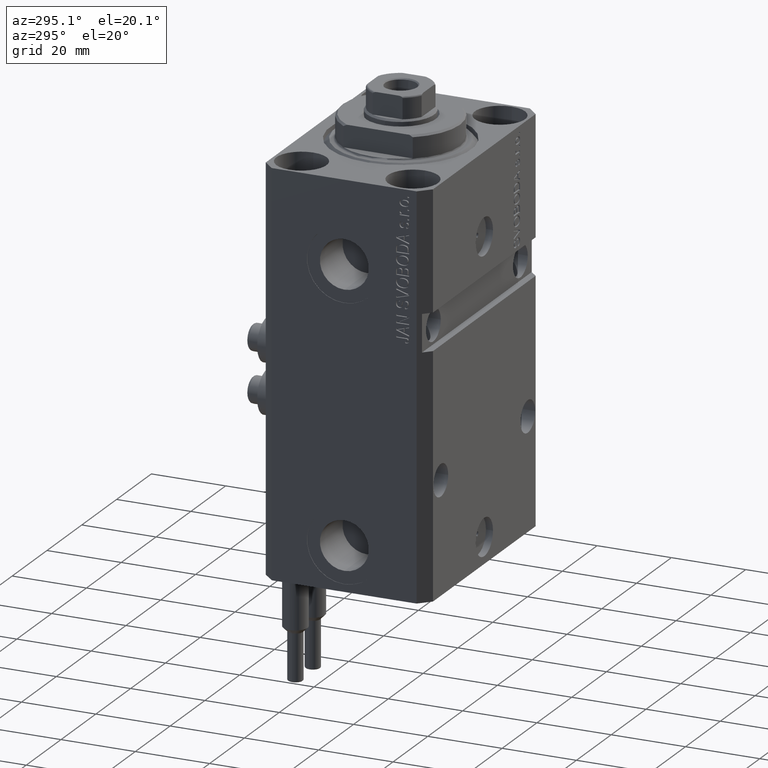
[diagram: clean part render]
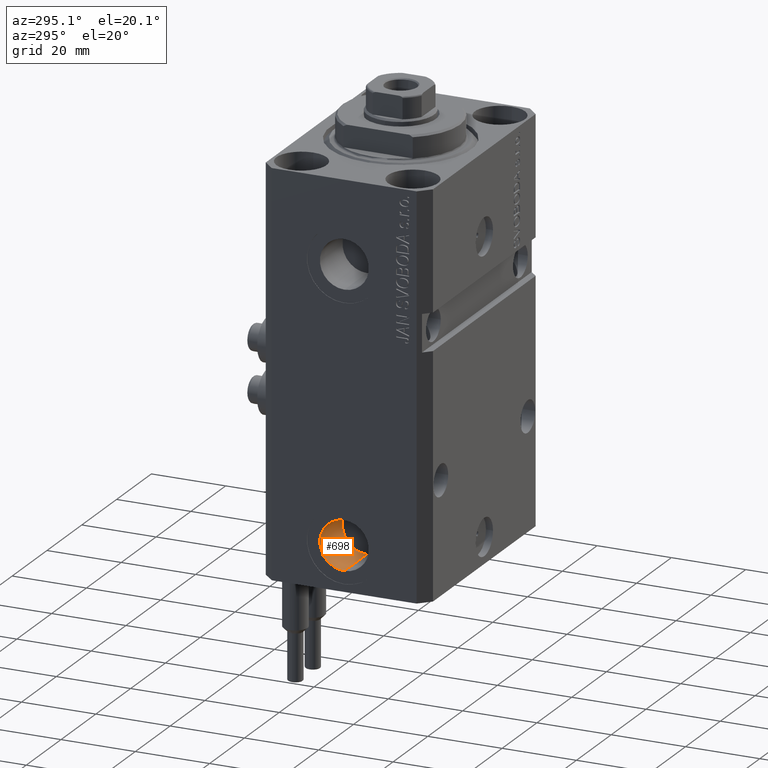
[diagram: same view with one face highlighted and labeled with its STEP entity id]
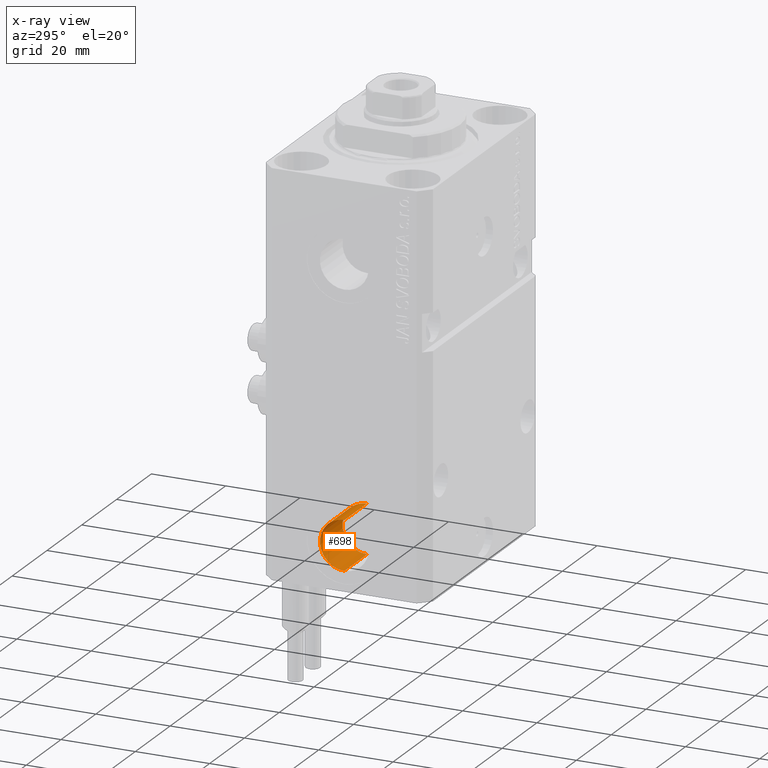
[diagram: x-ray of the same camera — body ghosted, the highlighted face saturated]
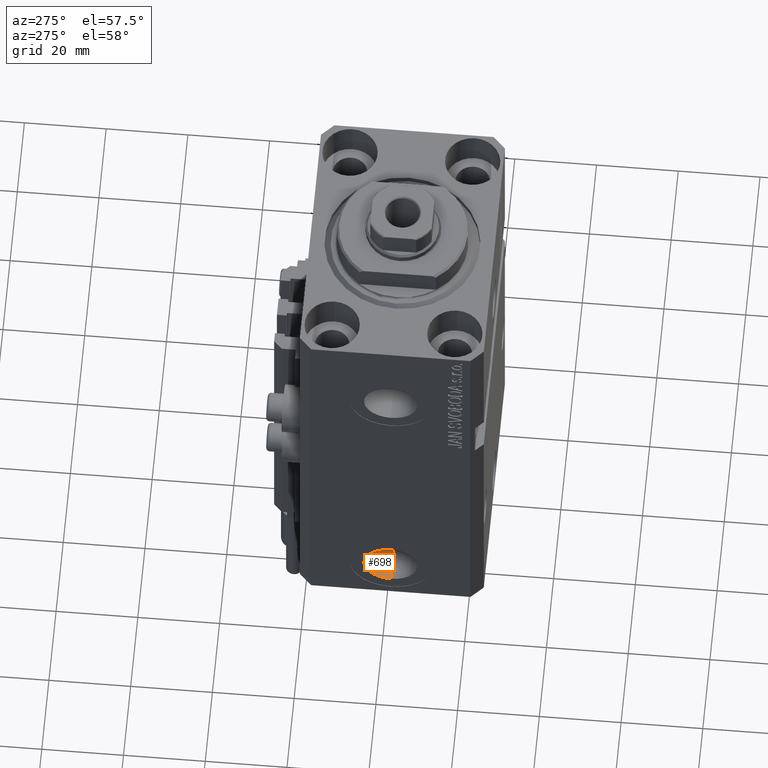
[diagram: same view with one face highlighted and labeled with its STEP entity id]
A machine part, auxiliary view. The second image highlights one B-rep face of the part: STEP entity #698.
The next image is the same camera in x-ray: the body ghosted, the highlighted face saturated — about 0% of this face is hidden behind the body in this view.
A second angle (auxiliary view) of the same face is appended — the face is thin or edge-on in the first view.
In plain terms, the highlighted cylindrical surface (edge-blend (fillet) strip) has radius 6.58 mm, axis along (-1, -0, -0).
Its self-contained STEP definition (entity closure, byte-faithful):
#643 = DIRECTION ( 'NONE',  ( 0.000000000000000000, 0.000000000000000000, 1.000000000000000000 ) ) ;
#698 = ADVANCED_FACE ( 'NONE', ( #12539 ), #16274, .F. ) ;
#1612 = DIRECTION ( 'NONE',  ( -1.000000000000000000, -0.000000000000000000, -0.000000000000000000 ) ) ;
#2351 = DIRECTION ( 'NONE',  ( -1.000000000000000000, -0.000000000000000000, -0.000000000000000000 ) ) ;
#4406 = VERTEX_POINT ( 'NONE', #9018 ) ;
#5579 = AXIS2_PLACEMENT_3D ( 'NONE', #21776, #44334, #6136 ) ;
#5591 = CARTESIAN_POINT ( 'NONE',  ( -32.39999999999650271, -1.082832699806089739E-14, -101.5799999999999983 ) ) ;
#6136 = DIRECTION ( 'NONE',  ( 0.000000000000000000, 0.000000000000000000, 1.000000000000000000 ) ) ;
#6970 = VERTEX_POINT ( 'NONE', #5591 ) ;
#7231 = EDGE_CURVE ( 'NONE', #41158, #6970, #14315, .T. ) ;
#8342 = EDGE_LOOP ( 'NONE', ( #44504, #35443, #24979, #22850 ) ) ;
#8645 = VECTOR ( 'NONE', #2351, 1000.000000000000000 ) ;
#9018 = CARTESIAN_POINT ( 'NONE',  ( -19.39999999999650271, -1.082832699806089739E-14, -101.5799999999999983 ) ) ;
#10248 = AXIS2_PLACEMENT_3D ( 'NONE', #27688, #1612, #643 ) ;
#11604 = EDGE_CURVE ( 'NONE', #4406, #6970, #32284, .T. ) ;
#12539 = FACE_OUTER_BOUND ( 'NONE', #8342, .T. ) ;
#14315 = CIRCLE ( 'NONE', #25420, 6.580000000000002736 ) ;
#16051 = VECTOR ( 'NONE', #39454, 1000.000000000000000 ) ;
#16274 = CYLINDRICAL_SURFACE ( 'NONE', #10248, 6.580000000000002736 ) ;
#17859 = EDGE_CURVE ( 'NONE', #23916, #41158, #40071, .T. ) ;
#21218 = CARTESIAN_POINT ( 'NONE',  ( -19.39999999999650271, -1.163414459189985643E-14, -88.42000000000000171 ) ) ;
#21776 = CARTESIAN_POINT ( 'NONE',  ( -19.39999999999650271, -1.163414459189985643E-14, -95.00000000000000000 ) ) ;
#22850 = ORIENTED_EDGE ( 'NONE', *, *, #7231, .T. ) ;
#23916 = VERTEX_POINT ( 'NONE', #28302 ) ;
#24623 = CIRCLE ( 'NONE', #5579, 6.580000000000002736 ) ;
#24979 = ORIENTED_EDGE ( 'NONE', *, *, #17859, .T. ) ;
#25420 = AXIS2_PLACEMENT_3D ( 'NONE', #38303, #30622, #27628 ) ;
#27628 = DIRECTION ( 'NONE',  ( 0.000000000000000000, 0.000000000000000000, 1.000000000000000000 ) ) ;
#27688 = CARTESIAN_POINT ( 'NONE',  ( -19.39999999999650271, -1.163414459189985643E-14, -95.00000000000000000 ) ) ;
#28302 = CARTESIAN_POINT ( 'NONE',  ( -19.39999999999650271, -1.163414459189985643E-14, -88.42000000000000171 ) ) ;
#30622 = DIRECTION ( 'NONE',  ( -1.000000000000000000, 0.000000000000000000, 0.000000000000000000 ) ) ;
#32284 = LINE ( 'NONE', #43681, #16051 ) ;
#35443 = ORIENTED_EDGE ( 'NONE', *, *, #39309, .F. ) ;
#38303 = CARTESIAN_POINT ( 'NONE',  ( -32.39999999999650271, -1.163414459189985643E-14, -95.00000000000000000 ) ) ;
#39309 = EDGE_CURVE ( 'NONE', #23916, #4406, #24623, .T. ) ;
#39454 = DIRECTION ( 'NONE',  ( -1.000000000000000000, -0.000000000000000000, -0.000000000000000000 ) ) ;
#40071 = LINE ( 'NONE', #21218, #8645 ) ;
#41158 = VERTEX_POINT ( 'NONE', #42358 ) ;
#42358 = CARTESIAN_POINT ( 'NONE',  ( -32.39999999999650271, -1.163414459189985643E-14, -88.42000000000000171 ) ) ;
#43681 = CARTESIAN_POINT ( 'NONE',  ( -19.39999999999650271, -1.082832699806089739E-14, -101.5799999999999983 ) ) ;
#44334 = DIRECTION ( 'NONE',  ( -1.000000000000000000, 0.000000000000000000, 0.000000000000000000 ) ) ;
#44504 = ORIENTED_EDGE ( 'NONE', *, *, #11604, .F. ) ;